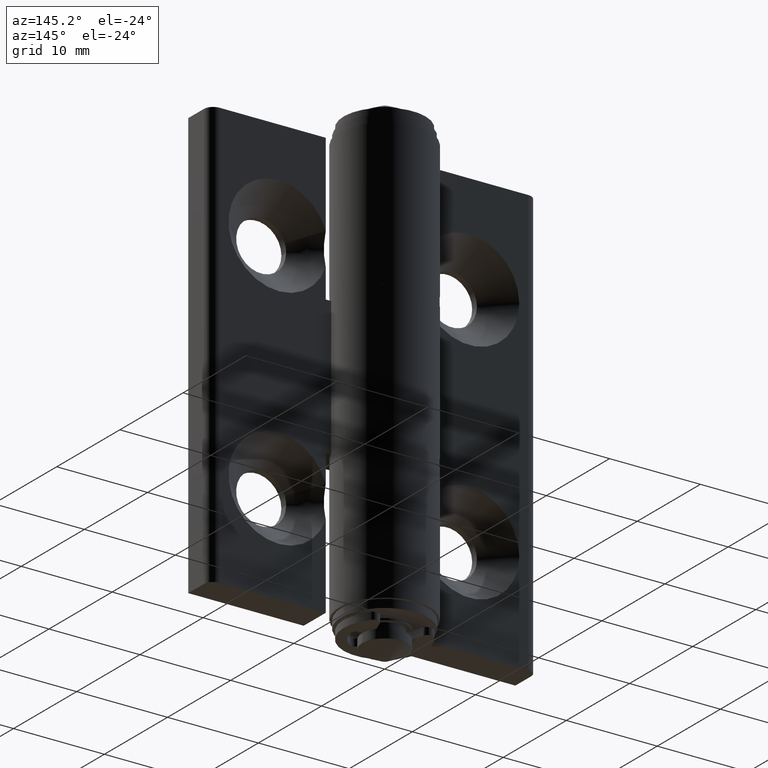
[diagram: clean part render]
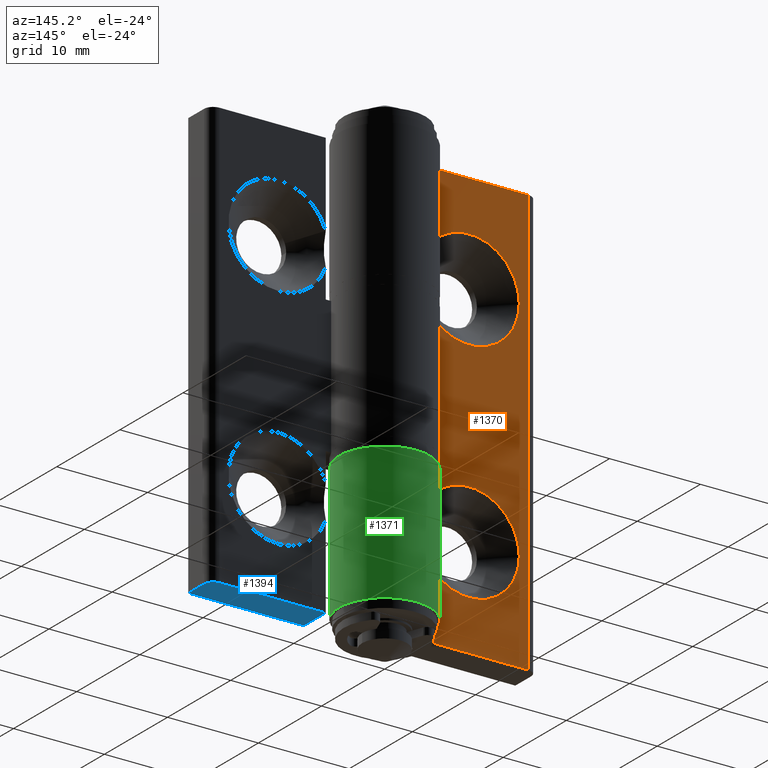
[diagram: same view with three faces highlighted in distinct colors, each labeled with its STEP entity id]
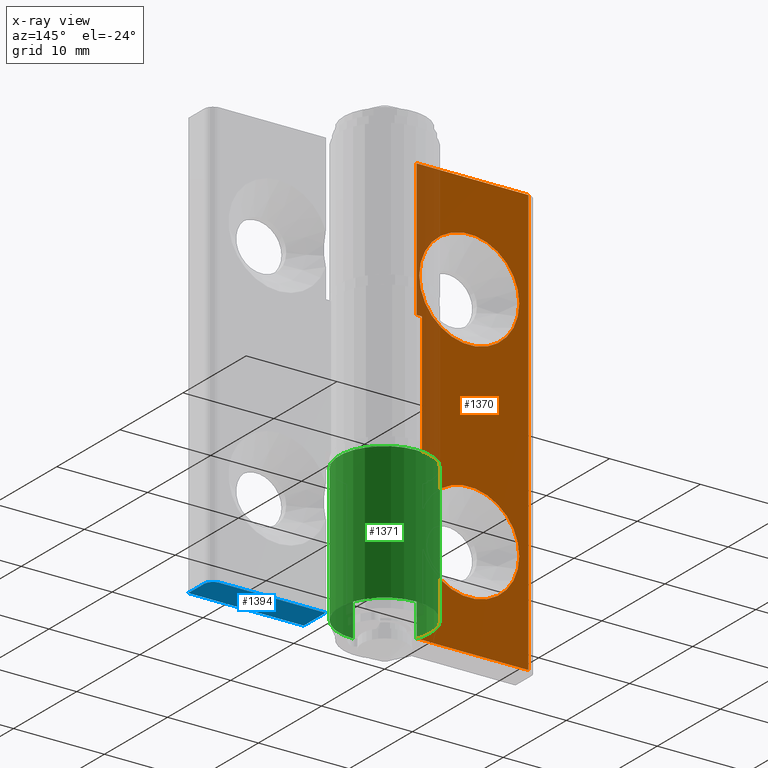
[diagram: x-ray of the same camera — body ghosted, the three highlighted faces saturated]
A machine part, auxiliary view with three faces highlighted in distinct colors.
The next image is the same camera in x-ray (body ghosted, the three faces saturated) — at least one of them is partly hidden behind the body in this view.
Their STEP definitions:

[orange] entity #1370 — the highlighted planar face has unit normal (0, 1, 0).
#119=FACE_BOUND('',#240,.T.);
#120=FACE_BOUND('',#241,.T.);
#153=FACE_OUTER_BOUND('',#239,.T.);
#239=EDGE_LOOP('',(#967,#968,#969,#970,#971,#972,#973,#974));
#240=EDGE_LOOP('',(#975));
#241=EDGE_LOOP('',(#976));
#357=CIRCLE('',#1466,5.5);
#358=CIRCLE('',#1467,5.5);
#429=LINE('',#2096,#535);
#432=LINE('',#2107,#538);
#435=LINE('',#2116,#541);
#436=LINE('',#2118,#542);
#437=LINE('',#2120,#543);
#438=LINE('',#2122,#544);
#439=LINE('',#2124,#545);
#440=LINE('',#2125,#546);
#535=VECTOR('',#1638,0.59787282179651);
#538=VECTOR('',#1647,0.59787282179651);
#541=VECTOR('',#1656,17.);
#542=VECTOR('',#1657,15.);
#543=VECTOR('',#1658,12.2978728217965);
#544=VECTOR('',#1659,47.);
#545=VECTOR('',#1660,12.2978728217965);
#546=VECTOR('',#1661,15.);
#641=VERTEX_POINT('',#2094);
#642=VERTEX_POINT('',#2095);
#646=VERTEX_POINT('',#2105);
#647=VERTEX_POINT('',#2106);
#651=VERTEX_POINT('',#2117);
#652=VERTEX_POINT('',#2119);
#653=VERTEX_POINT('',#2121);
#654=VERTEX_POINT('',#2123);
#655=VERTEX_POINT('',#2126);
#656=VERTEX_POINT('',#2128);
#773=EDGE_CURVE('',#641,#642,#429,.T.);
#778=EDGE_CURVE('',#646,#647,#432,.T.);
#783=EDGE_CURVE('',#647,#641,#435,.T.);
#784=EDGE_CURVE('',#651,#642,#436,.T.);
#785=EDGE_CURVE('',#652,#651,#437,.T.);
#786=EDGE_CURVE('',#653,#652,#438,.T.);
#787=EDGE_CURVE('',#654,#653,#439,.T.);
#788=EDGE_CURVE('',#646,#654,#440,.T.);
#789=EDGE_CURVE('',#655,#655,#357,.T.);
#790=EDGE_CURVE('',#656,#656,#358,.T.);
#967=ORIENTED_EDGE('',*,*,#778,.T.);
#968=ORIENTED_EDGE('',*,*,#783,.T.);
#969=ORIENTED_EDGE('',*,*,#773,.T.);
#970=ORIENTED_EDGE('',*,*,#784,.F.);
#971=ORIENTED_EDGE('',*,*,#785,.F.);
#972=ORIENTED_EDGE('',*,*,#786,.F.);
#973=ORIENTED_EDGE('',*,*,#787,.F.);
#974=ORIENTED_EDGE('',*,*,#788,.F.);
#975=ORIENTED_EDGE('',*,*,#789,.T.);
#976=ORIENTED_EDGE('',*,*,#790,.T.);
#1327=PLANE('',#1465);
#1370=ADVANCED_FACE('',(#153,#119,#120),#1327,.T.);
#1465=AXIS2_PLACEMENT_3D('',#2115,#1654,#1655);
#1466=AXIS2_PLACEMENT_3D('',#2127,#1662,#1663);
#1467=AXIS2_PLACEMENT_3D('',#2129,#1664,#1665);
#1638=DIRECTION('',(-1.,0.,0.));
#1647=DIRECTION('',(1.,0.,0.));
#1654=DIRECTION('center_axis',(0.,1.,0.));
#1655=DIRECTION('ref_axis',(-1.,0.,0.));
#1656=DIRECTION('',(0.,0.,1.));
#1657=DIRECTION('',(0.,0.,-1.));
#1658=DIRECTION('',(-1.,0.,0.));
#1659=DIRECTION('',(0.,0.,1.));
#1660=DIRECTION('',(1.,0.,0.));
#1661=DIRECTION('',(0.,0.,-1.));
#1662=DIRECTION('center_axis',(0.,-1.,0.));
#1663=DIRECTION('ref_axis',(1.,0.,0.));
#1664=DIRECTION('center_axis',(0.,-1.,0.));
#1665=DIRECTION('ref_axis',(1.,0.,0.));
#2094=CARTESIAN_POINT('',(5.30000000000001,-1.7,8.5));
#2095=CARTESIAN_POINT('',(4.7021271782035,-1.7,8.5));
#2096=CARTESIAN_POINT('',(11.65,-1.7,8.5));
#2105=CARTESIAN_POINT('',(4.7021271782035,-1.7,-8.5));
#2106=CARTESIAN_POINT('',(5.30000000000001,-1.7,-8.5));
#2107=CARTESIAN_POINT('',(3.50816251430501,-1.7,-8.5));
#2115=CARTESIAN_POINT('Origin',(18.,-1.7,0.));
#2116=CARTESIAN_POINT('',(5.3,-1.7,-4.25));
#2117=CARTESIAN_POINT('',(4.7021271782035,-1.7,23.5));
#2118=CARTESIAN_POINT('',(4.7021271782035,-1.7,0.));
#2119=CARTESIAN_POINT('',(17.,-1.7,23.5));
#2120=CARTESIAN_POINT('',(18.,-1.7,23.5));
#2121=CARTESIAN_POINT('',(17.,-1.7,-23.5));
#2122=CARTESIAN_POINT('',(17.,-1.7,0.));
#2123=CARTESIAN_POINT('',(4.7021271782035,-1.7,-23.5));
#2124=CARTESIAN_POINT('',(18.,-1.7,-23.5));
#2125=CARTESIAN_POINT('',(4.7021271782035,-1.7,0.));
#2126=CARTESIAN_POINT('',(5.,-1.7,12.5));
#2127=CARTESIAN_POINT('Origin',(10.5,-1.7,12.5));
#2128=CARTESIAN_POINT('',(5.,-1.7,-12.5));
#2129=CARTESIAN_POINT('Origin',(10.5,-1.7,-12.5));

[blue] entity #1394 — the highlighted planar face has unit normal (0, 0, 1).
#177=FACE_OUTER_BOUND('',#277,.T.);
#277=EDGE_LOOP('',(#1089,#1090,#1091,#1092,#1093));
#374=CIRCLE('',#1506,1.);
#469=LINE('',#2232,#575);
#475=LINE('',#2249,#581);
#476=LINE('',#2253,#582);
#477=LINE('',#2254,#583);
#575=VECTOR('',#1762,3.5);
#581=VECTOR('',#1782,11.7);
#582=VECTOR('',#1787,2.5);
#583=VECTOR('',#1788,12.7);
#683=VERTEX_POINT('',#2211);
#690=VERTEX_POINT('',#2230);
#693=VERTEX_POINT('',#2241);
#694=VERTEX_POINT('',#2243);
#695=VERTEX_POINT('',#2252);
#835=EDGE_CURVE('',#683,#690,#469,.T.);
#840=EDGE_CURVE('',#693,#694,#374,.T.);
#844=EDGE_CURVE('',#690,#694,#475,.T.);
#846=EDGE_CURVE('',#693,#695,#476,.T.);
#847=EDGE_CURVE('',#695,#683,#477,.T.);
#1089=ORIENTED_EDGE('',*,*,#835,.T.);
#1090=ORIENTED_EDGE('',*,*,#844,.T.);
#1091=ORIENTED_EDGE('',*,*,#840,.F.);
#1092=ORIENTED_EDGE('',*,*,#846,.T.);
#1093=ORIENTED_EDGE('',*,*,#847,.T.);
#1340=PLANE('',#1510);
#1394=ADVANCED_FACE('',(#177),#1340,.F.);
#1506=AXIS2_PLACEMENT_3D('',#2244,#1774,#1775);
#1510=AXIS2_PLACEMENT_3D('',#2251,#1785,#1786);
#1762=DIRECTION('',(0.,1.,0.));
#1774=DIRECTION('center_axis',(0.,0.,1.));
#1775=DIRECTION('ref_axis',(0.707106781186548,0.707106781186547,0.));
#1782=DIRECTION('',(1.,0.,0.));
#1785=DIRECTION('center_axis',(0.,0.,1.));
#1786=DIRECTION('ref_axis',(1.,0.,0.));
#1787=DIRECTION('',(0.,-1.,0.));
#1788=DIRECTION('',(-1.,-8.74191357972564E-17,0.));
#2211=CARTESIAN_POINT('',(5.3,-5.2,-23.5));
#2230=CARTESIAN_POINT('',(5.3,-1.7,-23.5));
#2232=CARTESIAN_POINT('',(5.3,-5.,-23.5));
#2241=CARTESIAN_POINT('',(18.,-2.7,-23.5));
#2243=CARTESIAN_POINT('',(17.,-1.7,-23.5));
#2244=CARTESIAN_POINT('Origin',(17.,-2.7,-23.5));
#2249=CARTESIAN_POINT('',(18.,-1.7,-23.5));
#2251=CARTESIAN_POINT('Origin',(6.5,-0.0999999999999995,-23.5));
#2252=CARTESIAN_POINT('',(18.,-5.2,-23.5));
#2253=CARTESIAN_POINT('',(18.,-5.2,-23.5));
#2254=CARTESIAN_POINT('',(5.3,-5.2,-23.5));

[green] entity #1371 — the highlighted cylindrical surface (partial cylindrical patch) has radius 5 mm, axis along (0, 0, -1).
#82=CYLINDRICAL_SURFACE('',#1468,5.);
#154=FACE_OUTER_BOUND('',#242,.T.);
#242=EDGE_LOOP('',(#977,#978,#979,#980));
#353=CIRCLE('',#1460,5.);
#359=CIRCLE('',#1469,5.);
#436=LINE('',#2118,#542);
#441=LINE('',#2132,#547);
#542=VECTOR('',#1657,15.);
#547=VECTOR('',#1668,15.);
#642=VERTEX_POINT('',#2095);
#644=VERTEX_POINT('',#2099);
#651=VERTEX_POINT('',#2117);
#657=VERTEX_POINT('',#2131);
#776=EDGE_CURVE('',#642,#644,#353,.T.);
#784=EDGE_CURVE('',#651,#642,#436,.T.);
#791=EDGE_CURVE('',#644,#657,#441,.T.);
#792=EDGE_CURVE('',#651,#657,#359,.T.);
#977=ORIENTED_EDGE('',*,*,#776,.T.);
#978=ORIENTED_EDGE('',*,*,#791,.T.);
#979=ORIENTED_EDGE('',*,*,#792,.F.);
#980=ORIENTED_EDGE('',*,*,#784,.T.);
#1371=ADVANCED_FACE('',(#154),#82,.T.);
#1460=AXIS2_PLACEMENT_3D('',#2101,#1641,#1642);
#1468=AXIS2_PLACEMENT_3D('',#2130,#1666,#1667);
#1469=AXIS2_PLACEMENT_3D('',#2133,#1669,#1670);
#1641=DIRECTION('center_axis',(0.,0.,1.));
#1642=DIRECTION('ref_axis',(0.9404254356407,-0.34,0.));
#1657=DIRECTION('',(0.,0.,-1.));
#1666=DIRECTION('center_axis',(0.,0.,1.));
#1667=DIRECTION('ref_axis',(-0.574456264653803,0.818535277187245,0.));
#1668=DIRECTION('',(0.,0.,1.));
#1669=DIRECTION('center_axis',(0.,0.,1.));
#1670=DIRECTION('ref_axis',(0.9404254356407,-0.34,0.));
#2095=CARTESIAN_POINT('',(4.7021271782035,-1.7,8.5));
#2099=CARTESIAN_POINT('',(1.11022302462516E-15,-5.,8.5));
#2101=CARTESIAN_POINT('Origin',(0.,0.,8.5));
#2117=CARTESIAN_POINT('',(4.7021271782035,-1.7,23.5));
#2118=CARTESIAN_POINT('',(4.7021271782035,-1.7,0.));
#2130=CARTESIAN_POINT('Origin',(0.,0.,0.));
#2131=CARTESIAN_POINT('',(1.11022302462516E-15,-5.,23.5));
#2132=CARTESIAN_POINT('',(1.11022302462516E-15,-5.,0.));
#2133=CARTESIAN_POINT('Origin',(0.,0.,23.5));